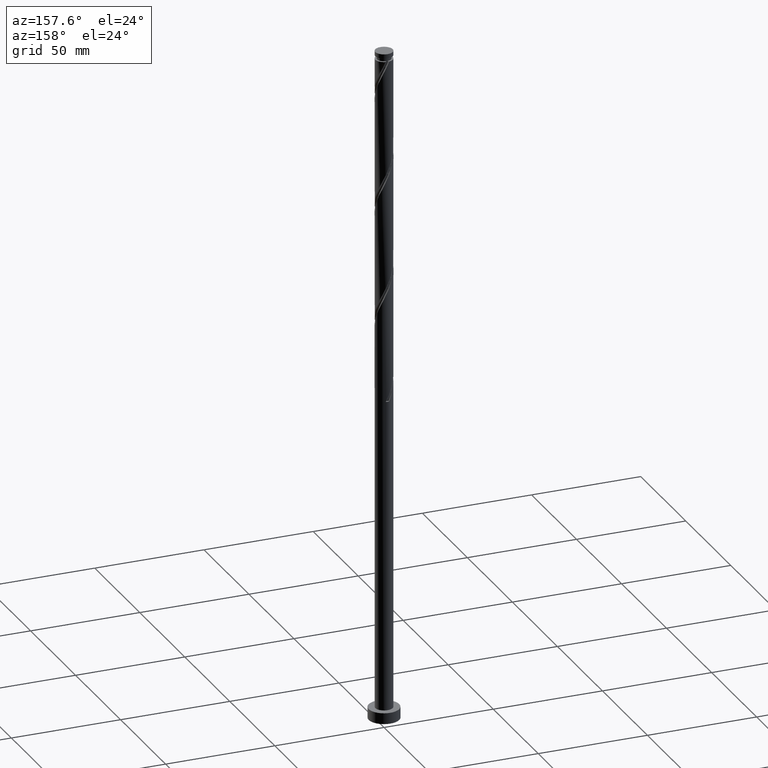
[diagram: clean part render]
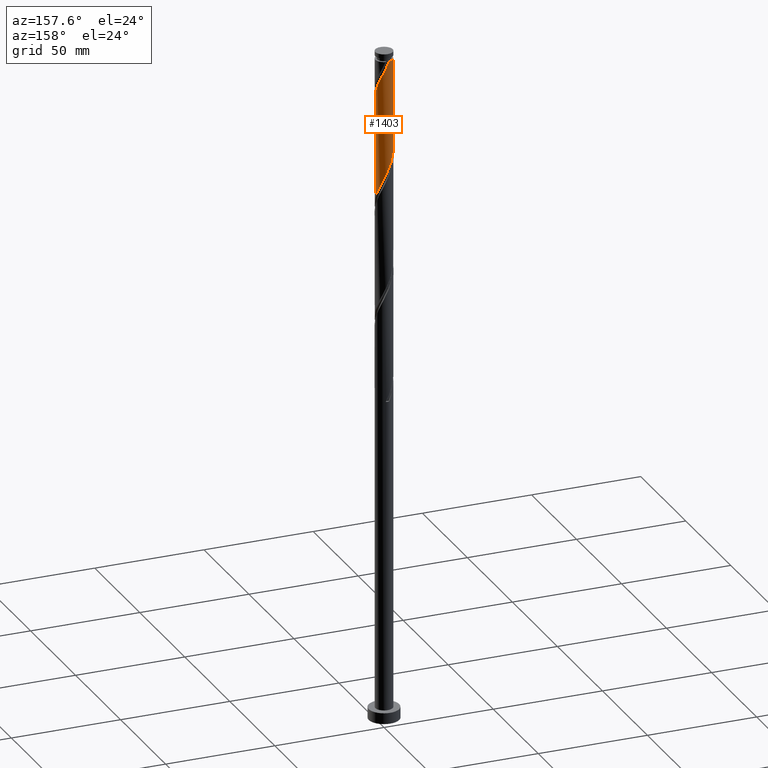
[diagram: same view with one face highlighted and labeled with its STEP entity id]
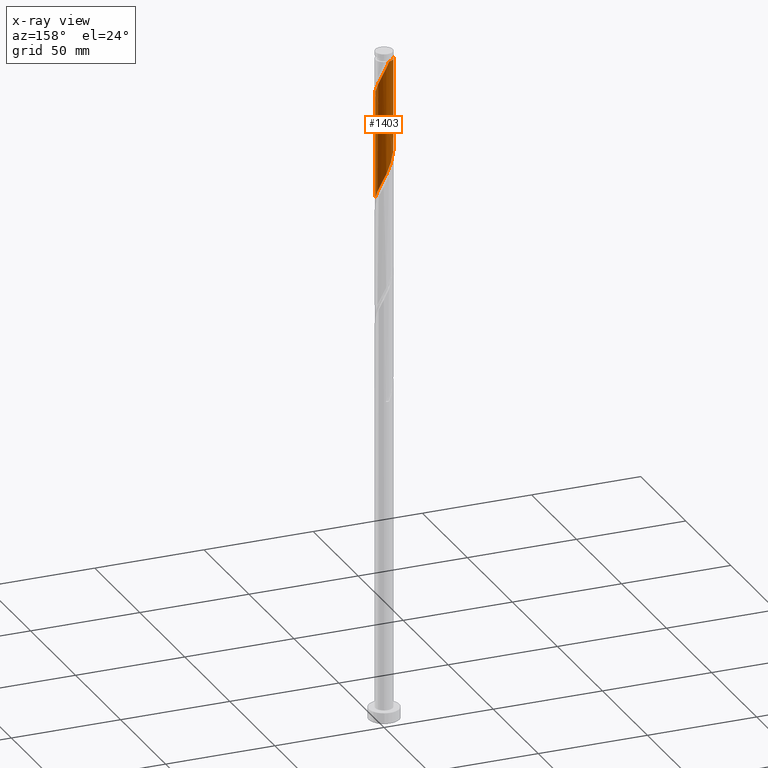
[diagram: x-ray of the same camera — body ghosted, the highlighted face saturated]
A machine part, auxiliary view. The second image highlights one B-rep face of the part: STEP entity #1403.
The next image is the same camera in x-ray: the body ghosted, the highlighted face saturated — about 0% of this face is hidden behind the body in this view.
In plain terms, the highlighted cylindrical surface (edge-blend (fillet) strip) has radius 4 mm, axis along (-0, -0, -1).
Its self-contained STEP definition (entity closure, byte-faithful):
#11 = CARTESIAN_POINT ( 'NONE',  ( 2.222986362731496079, 3.355809096668280311, 298.8859676459097727 ) ) ;
#69 = VECTOR ( 'NONE', #1259, 1000.000000000000000 ) ;
#80 = CARTESIAN_POINT ( 'NONE',  ( -3.458872505219855675, 2.058961887652577261, 263.2609676459098864 ) ) ;
#95 = ORIENTED_EDGE ( 'NONE', *, *, #1076, .T. ) ;
#112 = CARTESIAN_POINT ( 'NONE',  ( -2.913989227796199177, 2.777010954688412081, 261.3859676459099433 ) ) ;
#118 = CARTESIAN_POINT ( 'NONE',  ( 0.000000000000000000, 0.000000000000000000, 309.0000000000000000 ) ) ;
#124 = CARTESIAN_POINT ( 'NONE',  ( 4.000000000000000000, 0.04813158866556459248, 241.5983474120410222 ) ) ;
#144 = CARTESIAN_POINT ( 'NONE',  ( -1.821750020894125299, 3.561071027285505508, 258.5734676459098864 ) ) ;
#160 = CARTESIAN_POINT ( 'NONE',  ( 3.186430866508033866, 2.417986421170497557, 296.0734676459099433 ) ) ;
#253 = CARTESIAN_POINT ( 'NONE',  ( 4.000000000000000000, 4.898587196589412829E-16, 309.0000000000000000 ) ) ;
#267 = CARTESIAN_POINT ( 'NONE',  ( 2.568487795263851403, 3.066410025678347750, 297.9484676459098296 ) ) ;
#278 = DIRECTION ( 'NONE',  ( -1.000000000000000000, 0.000000000000000000, 0.000000000000000000 ) ) ;
#284 = CARTESIAN_POINT ( 'NONE',  ( 0.7959899496852993472, 3.919999999999999485, 252.9484676459098864 ) ) ;
#294 = CARTESIAN_POINT ( 'NONE',  ( 3.561071027285505952, 1.821750020894124855, 245.4484676459098864 ) ) ;
#297 = CARTESIAN_POINT ( 'NONE',  ( -4.000000000000000000, 0.000000000000000000, 309.0000000000000000 ) ) ;
#299 = CARTESIAN_POINT ( 'NONE',  ( 3.920000000000005258, 0.7959899496852984591, 292.3234676459100569 ) ) ;
#304 = CARTESIAN_POINT ( 'NONE',  ( -0.5468105079655619649, 3.987997157791136171, 255.7609676459099433 ) ) ;
#311 = ORIENTED_EDGE ( 'NONE', *, *, #779, .T. ) ;
#329 = AXIS2_PLACEMENT_3D ( 'NONE', #368, #1688, #1270 ) ;
#368 = CARTESIAN_POINT ( 'NONE',  ( 0.000000000000000000, 0.000000000000000000, 305.4484676459098864 ) ) ;
#392 =( BOUNDED_CURVE ( )  B_SPLINE_CURVE ( 2, ( #1916, #426, #299, #1180, #1357, #870, #160, #437, #267, #11, #1471, #759, #891, #749, #1159, #1772, #1016 ),
 .UNSPECIFIED., .F., .T. ) 
 B_SPLINE_CURVE_WITH_KNOTS ( ( 3, 2, 2, 2, 2, 2, 2, 2, 3 ),
 ( 0.6795303401299225277, 0.6875000000000000000, 0.6964285714285715079, 0.7053571428571429047, 0.7142857142857144126, 0.7232142857142859205, 0.7321428571428574283, 0.7410714285714289362, 0.7500000000000003331 ),
 .UNSPECIFIED. ) 
 CURVE ( )  GEOMETRIC_REPRESENTATION_ITEM ( )  RATIONAL_B_SPLINE_CURVE ( ( 0.9079949616362102960, 0.9039886423360743439, 0.9090909090909405910, 0.9033747362666157965, 0.9090909090909405910, 0.9033747362666157965, 0.9090909090909405910, 0.9033747362666157965, 0.9090909090909405910, 0.9033747362666157965, 0.9090909090909405910, 0.9033747362666157965, 0.9090909090909405910, 0.9033747362666157965, 0.9090909090909405910, 0.9033747362666156855, 0.9090909090909407020 ) ) 
 REPRESENTATION_ITEM ( '' )  );
#410 = CARTESIAN_POINT ( 'NONE',  ( -3.186430866508027204, 2.417986421170494449, 262.3234676459098296 ) ) ;
#426 = CARTESIAN_POINT ( 'NONE',  ( 3.999999999999999112, 0.4020151261037084311, 291.4872216469674981 ) ) ;
#437 = CARTESIAN_POINT ( 'NONE',  ( 2.913989227796204506, 2.777010954688415634, 297.0109676459098296 ) ) ;
#439 = FACE_OUTER_BOUND ( 'NONE', #1437, .T. ) ;
#441 = VERTEX_POINT ( 'NONE', #677 ) ;
#445 = CARTESIAN_POINT ( 'NONE',  ( 3.877165057846936769, 0.9836620935111595188, 243.5734676459098296 ) ) ;
#448 = LINE ( 'NONE', #297, #69 ) ;
#456 = CARTESIAN_POINT ( 'NONE',  ( -0.09624924134434935385, 3.998841842776559741, 254.8234676459099148 ) ) ;
#525 = VERTEX_POINT ( 'NONE', #1306 ) ;
#560 = VERTEX_POINT ( 'NONE', #1420 ) ;
#568 = CARTESIAN_POINT ( 'NONE',  ( -2.222986362731491639, 3.355809096668276759, 259.5109676459099433 ) ) ;
#573 = EDGE_CURVE ( 'NONE', #441, #560, #1262, .T. ) ;
#579 = CARTESIAN_POINT ( 'NONE',  ( -1.420513679056759404, 3.766332957902735146, 257.6359676459098864 ) ) ;
#582 = DIRECTION ( 'NONE',  ( -0.000000000000000000, -0.000000000000000000, -1.000000000000000000 ) ) ;
#662 = CARTESIAN_POINT ( 'NONE',  ( -0.7959899496852981260, 3.920000000000006146, 305.4484676459098864 ) ) ;
#677 = CARTESIAN_POINT ( 'NONE',  ( -4.000000000000000000, 7.358406346112387217E-15, 267.7479847238159323 ) ) ;
#700 = CARTESIAN_POINT ( 'NONE',  ( -4.000000000000000000, 0.4020151261036842838, 266.9097136448523315 ) ) ;
#709 = CARTESIAN_POINT ( 'NONE',  ( -2.568487795263845186, 3.066410025678343754, 260.4484676459098864 ) ) ;
#716 = VECTOR ( 'NONE', #582, 1000.000000000000000 ) ;
#723 = CARTESIAN_POINT ( 'NONE',  ( 3.766332957902735146, 1.420513679056757850, 244.5109676459098864 ) ) ;
#749 = CARTESIAN_POINT ( 'NONE',  ( 0.5468105079655644074, 3.987997157791141500, 302.6359676459099433 ) ) ;
#754 = CARTESIAN_POINT ( 'NONE',  ( 0.3543120252768632295, 4.009686527761982866, 253.8859676459098580 ) ) ;
#759 = CARTESIAN_POINT ( 'NONE',  ( 1.420513679056762957, 3.766332957902740475, 300.7609676459099433 ) ) ;
#779 = EDGE_CURVE ( 'NONE', #1891, #560, #1433, .T. ) ;
#829 = AXIS2_PLACEMENT_3D ( 'NONE', #118, #1595, #278 ) ;
#870 = CARTESIAN_POINT ( 'NONE',  ( 3.458872505219860560, 2.058961887652578593, 295.1359676459098864 ) ) ;
#886 = CARTESIAN_POINT ( 'NONE',  ( 3.999999999999999112, -2.828434082329203080E-15, 241.4979847238159607 ) ) ;
#891 = CARTESIAN_POINT ( 'NONE',  ( 0.9836620935111638486, 3.877165057846942986, 301.6984676459099433 ) ) ;
#1016 = CARTESIAN_POINT ( 'NONE',  ( -0.7959899496852981260, 3.920000000000006146, 305.4484676459098864 ) ) ;
#1046 = CARTESIAN_POINT ( 'NONE',  ( 3.355809096668276759, 2.222986362731491194, 246.3859676459099148 ) ) ;
#1072 = EDGE_CURVE ( 'NONE', #525, #441, #448, .T. ) ;
#1076 = EDGE_CURVE ( 'NONE', #525, #1107, #1173, .T. ) ;
#1107 = VERTEX_POINT ( 'NONE', #662 ) ;
#1117 = CARTESIAN_POINT ( 'NONE',  ( -3.919999999999999485, 0.7959899496852985701, 266.0734676459099433 ) ) ;
#1159 = CARTESIAN_POINT ( 'NONE',  ( 0.09624924134435117185, 3.998841842776566846, 303.5734676459098864 ) ) ;
#1173 = CIRCLE ( 'NONE', #329, 3.999999999999974243 ) ;
#1180 = CARTESIAN_POINT ( 'NONE',  ( 3.830313472238020545, 1.237667874093734355, 293.2609676459098296 ) ) ;
#1186 = CARTESIAN_POINT ( 'NONE',  ( 3.066410025678344198, 2.568487795263845186, 247.3234676459098864 ) ) ;
#1207 = CARTESIAN_POINT ( 'NONE',  ( 3.998841842776559741, 0.09624924134434870160, 241.6984676459098864 ) ) ;
#1259 = DIRECTION ( 'NONE',  ( -0.000000000000000000, -0.000000000000000000, -1.000000000000000000 ) ) ;
#1262 =( BOUNDED_CURVE ( )  B_SPLINE_CURVE ( 2, ( #1744, #700, #1117, #1866, #1711, #80, #410, #112, #709, #568, #144, #579, #1634, #304, #456, #754, #284, #1643, #1610, #1353, #1767, #1912, #1186, #1046, #294, #723, #445, #1922, #1207, #124, #886 ),
 .UNSPECIFIED., .F., .T. ) 
 B_SPLINE_CURVE_WITH_KNOTS ( ( 3, 2, 2, 2, 2, 2, 2, 2, 2, 2, 2, 2, 2, 2, 2, 3 ),
 ( 0.4295303401299219725, 0.4375000000000000000, 0.4464285714285714524, 0.4553571428571428492, 0.4642857142857143016, 0.4732142857142856984, 0.4821428571428571508, 0.4910714285714285476, 0.5000000000000000000, 0.5089285714285713969, 0.5178571428571429047, 0.5267857142857143016, 0.5357142857142856984, 0.5446428571428570953, 0.5535714285714286031, 0.5545303401299219725 ),
 .UNSPECIFIED. ) 
 CURVE ( )  GEOMETRIC_REPRESENTATION_ITEM ( )  RATIONAL_B_SPLINE_CURVE ( ( 0.9079949616362046338, 0.9039886423360676826, 0.9090909090909344847, 0.9033747362666094682, 0.9090909090909344847, 0.9033747362666094682, 0.9090909090909344847, 0.9033747362666094682, 0.9090909090909344847, 0.9033747362666094682, 0.9090909090909344847, 0.9033747362666094682, 0.9090909090909344847, 0.9033747362666094682, 0.9090909090909344847, 0.9033747362666094682, 0.9090909090909344847, 0.9033747362666094682, 0.9090909090909344847, 0.9033747362666094682, 0.9090909090909344847, 0.9033747362666094682, 0.9090909090909344847, 0.9033747362666094682, 0.9090909090909344847, 0.9033747362666094682, 0.9090909090909344847, 0.9033747362666094682, 0.9090909090909344847, 0.9084770030214763814, 0.9079949616362046338 ) ) 
 REPRESENTATION_ITEM ( '' )  );
#1270 = DIRECTION ( 'NONE',  ( -1.000000000000000000, 0.000000000000000000, 0.000000000000000000 ) ) ;
#1306 = CARTESIAN_POINT ( 'NONE',  ( -3.999999999999974243, 0.000000000000000000, 305.4484676459098864 ) ) ;
#1334 = ORIENTED_EDGE ( 'NONE', *, *, #573, .F. ) ;
#1347 = CARTESIAN_POINT ( 'NONE',  ( 4.000000000000005329, 2.612010366267056800E-16, 290.6489505680038974 ) ) ;
#1353 = CARTESIAN_POINT ( 'NONE',  ( 2.058961887652577261, 3.458872505219855231, 250.1359676459098864 ) ) ;
#1357 = CARTESIAN_POINT ( 'NONE',  ( 3.644592988728941663, 1.648314880873156696, 294.1984676459099433 ) ) ;
#1403 = ADVANCED_FACE ( 'NONE', ( #439 ), #1459, .T. ) ;
#1420 = CARTESIAN_POINT ( 'NONE',  ( 3.999999999999999112, -2.828434082329203080E-15, 241.4979847238159607 ) ) ;
#1433 = LINE ( 'NONE', #253, #716 ) ;
#1437 = EDGE_LOOP ( 'NONE', ( #1579, #311, #1334, #1848, #95 ) ) ;
#1459 = CYLINDRICAL_SURFACE ( 'NONE', #829, 4.000000000000000000 ) ;
#1471 = CARTESIAN_POINT ( 'NONE',  ( 1.821750020894129740, 3.561071027285511281, 299.8234676459098296 ) ) ;
#1579 = ORIENTED_EDGE ( 'NONE', *, *, #1838, .F. ) ;
#1595 = DIRECTION ( 'NONE',  ( -0.000000000000000000, -0.000000000000000000, -1.000000000000000000 ) ) ;
#1610 = CARTESIAN_POINT ( 'NONE',  ( 1.648314880873155808, 3.644592988728934113, 251.0734676459099433 ) ) ;
#1634 = CARTESIAN_POINT ( 'NONE',  ( -0.9836620935111604069, 3.877165057846936325, 256.6984676459098864 ) ) ;
#1643 = CARTESIAN_POINT ( 'NONE',  ( 1.237667874093734577, 3.830313472238015660, 252.0109676459099717 ) ) ;
#1688 = DIRECTION ( 'NONE',  ( -0.000000000000000000, -0.000000000000000000, -1.000000000000000000 ) ) ;
#1711 = CARTESIAN_POINT ( 'NONE',  ( -3.644592988728935001, 1.648314880873155364, 264.1984676459098296 ) ) ;
#1744 = CARTESIAN_POINT ( 'NONE',  ( -4.000000000000000000, 7.358406346112387217E-15, 267.7479847238159323 ) ) ;
#1767 = CARTESIAN_POINT ( 'NONE',  ( 2.417986421170495337, 3.186430866508027204, 249.1984676459099148 ) ) ;
#1772 = CARTESIAN_POINT ( 'NONE',  ( -0.3543120252768791056, 4.009686527761987307, 304.5109676459098864 ) ) ;
#1838 = EDGE_CURVE ( 'NONE', #1891, #1107, #392, .T. ) ;
#1848 = ORIENTED_EDGE ( 'NONE', *, *, #1072, .F. ) ;
#1866 = CARTESIAN_POINT ( 'NONE',  ( -3.830313472238015660, 1.237667874093733689, 265.1359676459098296 ) ) ;
#1891 = VERTEX_POINT ( 'NONE', #1347 ) ;
#1912 = CARTESIAN_POINT ( 'NONE',  ( 2.777010954688413413, 2.913989227796198733, 248.2609676459099148 ) ) ;
#1916 = CARTESIAN_POINT ( 'NONE',  ( 4.000000000000005329, 2.612010366267056800E-16, 290.6489505680038974 ) ) ;
#1922 = CARTESIAN_POINT ( 'NONE',  ( 3.987997157791136171, 0.5468105079655611878, 242.6359676459098864 ) ) ;